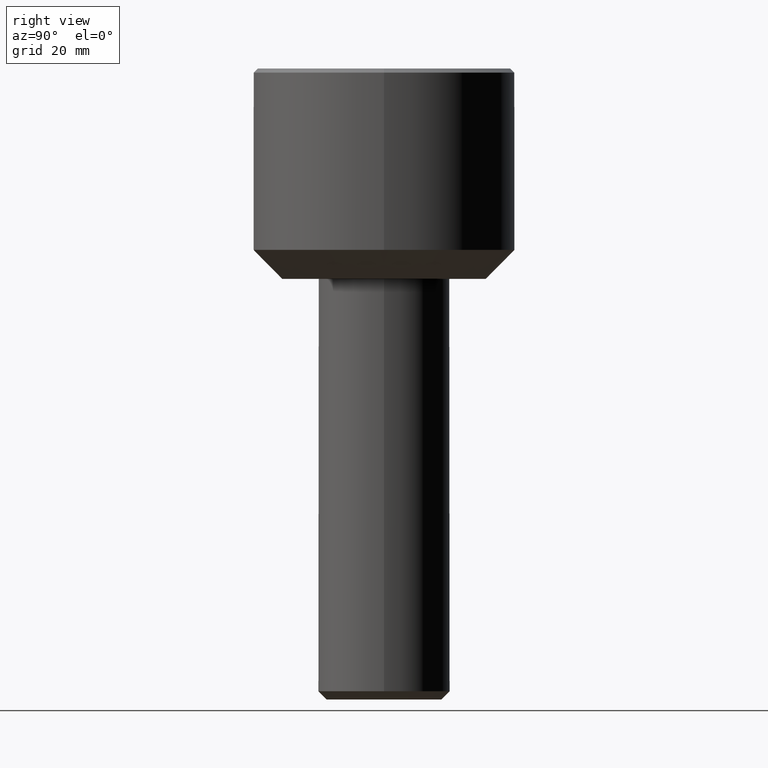
[diagram: clean part render]
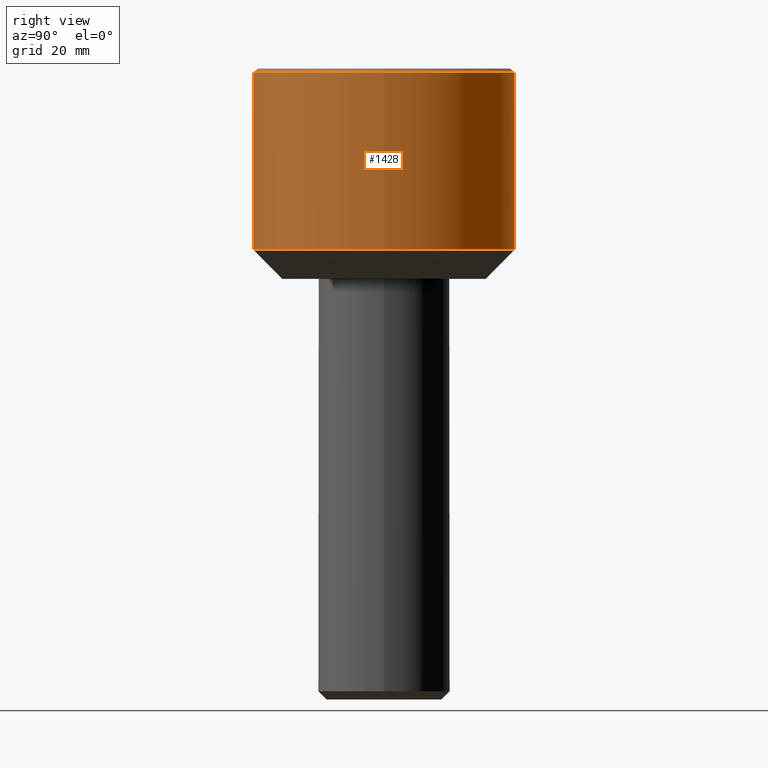
[diagram: same view with one face highlighted and labeled with its STEP entity id]
A machine part, right view. The second image highlights one B-rep face of the part: STEP entity #1428.
In plain terms, the highlighted cylindrical surface (bore or boss wall) has radius 31.635 mm, axis along (0, 0, 1).
Its self-contained STEP definition (entity closure, byte-faithful):
#4 = CARTESIAN_POINT ( 'NONE',  ( -31.29494617143287982, -4.627770575152126753, -11.99453285078505260 ) ) ;
#19 = VECTOR ( 'NONE', #127, 1000.000000000000000 ) ;
#74 = DIRECTION ( 'NONE',  ( -0.0000000000000000000, -0.0000000000000000000, -1.000000000000000000 ) ) ;
#86 = CARTESIAN_POINT ( 'NONE',  ( 0.0000000000000000000, 0.0000000000000000000, -50.79999999999999716 ) ) ;
#89 = CARTESIAN_POINT ( 'NONE',  ( 0.0000000000000000000, 0.0000000000000000000, -1.000000000000014655 ) ) ;
#93 = CARTESIAN_POINT ( 'NONE',  ( -31.57499155521561462, -1.982673587245592728, -21.88541886390813218 ) ) ;
#102 = CARTESIAN_POINT ( 'NONE',  ( -31.03936178477542285, 6.110462507248096031, -15.24455598308726145 ) ) ;
#111 = CARTESIAN_POINT ( 'NONE',  ( -31.18295517177928744, -5.333620611690355062, -19.13795296615103325 ) ) ;
#127 = DIRECTION ( 'NONE',  ( 0.0000000000000000000, 0.0000000000000000000, 1.000000000000000000 ) ) ;
#128 = CARTESIAN_POINT ( 'NONE',  ( -31.63499999999999801, -2.710505431213761085E-17, -9.900000000000002132 ) ) ;
#131 = CARTESIAN_POINT ( 'NONE',  ( -31.37345926647396865, -4.069474288278215113, -11.42163908736092814 ) ) ;
#143 = AXIS2_PLACEMENT_3D ( 'NONE', #86, #213, #1540 ) ;
#153 = AXIS2_PLACEMENT_3D ( 'NONE', #372, #1461, #1026 ) ;
#182 = CYLINDRICAL_SURFACE ( 'NONE', #143, 31.63500000000000512 ) ;
#185 = ORIENTED_EDGE ( 'NONE', *, *, #1700, .F. ) ;
#213 = DIRECTION ( 'NONE',  ( 0.0000000000000000000, 0.0000000000000000000, 1.000000000000000000 ) ) ;
#218 = CARTESIAN_POINT ( 'NONE',  ( -31.48617774082142162, 3.083283228783037622, -10.71360250916103318 ) ) ;
#225 = CARTESIAN_POINT ( 'NONE',  ( -31.60470170098007259, 1.398160463708151946, -10.05767778215976449 ) ) ;
#231 = CARTESIAN_POINT ( 'NONE',  ( -31.03150591184131457, -6.149704540309111067, -16.46060046698413970 ) ) ;
#233 = CARTESIAN_POINT ( 'NONE',  ( -31.25546420327848907, 4.890800144177320341, -19.80001582035771435 ) ) ;
#238 = CARTESIAN_POINT ( 'NONE',  ( -31.53312984910597905, 2.543556245516978898, -21.65297339836184065 ) ) ;
#242 = ORIENTED_EDGE ( 'NONE', *, *, #436, .F. ) ;
#246 = CARTESIAN_POINT ( 'NONE',  ( -31.09420476091030849, -5.824708136664795255, -18.03391168937421085 ) ) ;
#253 = CARTESIAN_POINT ( 'NONE',  ( -31.14955073844648936, -5.523005964174399374, -18.78534264180840552 ) ) ;
#257 = CARTESIAN_POINT ( 'NONE',  ( -31.59495882636598196, -1.602883798902350332, -10.10911986770909365 ) ) ;
#292 = CARTESIAN_POINT ( 'NONE',  ( -29.13500000000000512, -12.32578597899542494, -30.79999999999999716 ) ) ;
#331 = VERTEX_POINT ( 'NONE', #793 ) ;
#337 = CARTESIAN_POINT ( 'NONE',  ( -31.56088783546242382, 2.172188426028010433, -10.29285735724753259 ) ) ;
#350 = CARTESIAN_POINT ( 'NONE',  ( -31.37385217661605452, 4.066470608932987396, -11.41897445296088165 ) ) ;
#359 = CARTESIAN_POINT ( 'NONE',  ( -31.62531288138045582, 0.8084299760564176429, -22.15000615148151297 ) ) ;
#367 = CARTESIAN_POINT ( 'NONE',  ( -31.63503137585474434, -0.3993791786970989910, -22.20016139434829938 ) ) ;
#372 = CARTESIAN_POINT ( 'NONE',  ( 0.0000000000000000000, 0.0000000000000000000, -43.79999999999999005 ) ) ;
#374 = CARTESIAN_POINT ( 'NONE',  ( -31.41319968145773345, 3.754462846493052730, -20.93739841524076084 ) ) ;
#377 = CARTESIAN_POINT ( 'NONE',  ( -31.03149472680021503, 6.149760977421212083, -15.64422053971523141 ) ) ;
#382 = CARTESIAN_POINT ( 'NONE',  ( -31.03930406176959167, -6.110741338932145439, -15.24829750654376781 ) ) ;
#436 = EDGE_CURVE ( 'NONE', #859, #331, #960, .T. ) ;
#450 = CARTESIAN_POINT ( 'NONE',  ( -31.63500000000000512, 0.0000000000000000000, -9.900000000000002132 ) ) ;
#465 = ORIENTED_EDGE ( 'NONE', *, *, #1496, .F. ) ;
#471 = CARTESIAN_POINT ( 'NONE',  ( -31.62714141163481329, 0.8076758565718186178, -9.940067701724979443 ) ) ;
#481 = CARTESIAN_POINT ( 'NONE',  ( -31.09246550031209466, -5.835777288332026913, -14.06808548295174255 ) ) ;
#490 = CARTESIAN_POINT ( 'NONE',  ( -31.63305437799073516, 0.4047772109147499409, -22.19001543025934353 ) ) ;
#496 = CARTESIAN_POINT ( 'NONE',  ( -31.53356720063481333, -2.538076027116203726, -21.65542790947151630 ) ) ;
#502 = CARTESIAN_POINT ( 'NONE',  ( -31.59685051876095230, 1.602681203513629749, -22.00115700503473448 ) ) ;
#509 = CARTESIAN_POINT ( 'NONE',  ( -31.06254871442087406, -5.991068300330084639, -17.45350083635191751 ) ) ;
#514 = CARTESIAN_POINT ( 'NONE',  ( -29.13500000000000512, -12.32578597899539830, -43.79999999999999716 ) ) ;
#543 = CARTESIAN_POINT ( 'NONE',  ( -32.51467854958011827, 4.337091812975035765, -27.42032145041989821 ) ) ;
#601 = VERTEX_POINT ( 'NONE', #450 ) ;
#610 = ORIENTED_EDGE ( 'NONE', *, *, #786, .T. ) ;
#612 = CARTESIAN_POINT ( 'NONE',  ( -31.14867109723621397, -5.527928755267277339, -13.32487883047602217 ) ) ;
#616 = CARTESIAN_POINT ( 'NONE',  ( -31.25610394610896847, -4.883224598475700340, -12.30604596509955151 ) ) ;
#618 = DIRECTION ( 'NONE',  ( 0.0000000000000000000, 0.0000000000000000000, -1.000000000000000000 ) ) ;
#620 = CARTESIAN_POINT ( 'NONE',  ( -31.15027563534962951, 5.517504752590744133, -18.77400769837518268 ) ) ;
#623 = FACE_OUTER_BOUND ( 'NONE', #860, .T. ) ;
#628 = CARTESIAN_POINT ( 'NONE',  ( -31.29586820530218105, -4.628595306582016455, -20.11931210717043683 ) ) ;
#645 = CARTESIAN_POINT ( 'NONE',  ( -31.31460642270396377, -4.493215460353903623, -11.84601662027699298 ) ) ;
#659 = CARTESIAN_POINT ( 'NONE',  ( -31.63499999999999801, -0.4073368515243055432, -9.900000000000003908 ) ) ;
#701 = EDGE_CURVE ( 'NONE', #1562, #1562, #1199, .T. ) ;
#748 = CARTESIAN_POINT ( 'NONE',  ( -31.06965115799274457, -5.954522085857193225, -14.46017191860659246 ) ) ;
#755 = CARTESIAN_POINT ( 'NONE',  ( -31.29485843475698204, 4.635550321947788710, -20.11172800648304815 ) ) ;
#758 = VERTEX_POINT ( 'NONE', #1405 ) ;
#763 = CARTESIAN_POINT ( 'NONE',  ( -31.48569933183494030, -3.075032255355154120, -21.37984822377969252 ) ) ;
#771 = CARTESIAN_POINT ( 'NONE',  ( -31.07202134780150971, 5.941908991308467947, -14.45099962786069803 ) ) ;
#786 = EDGE_CURVE ( 'NONE', #859, #1439, #1280, .T. ) ;
#793 = CARTESIAN_POINT ( 'NONE',  ( -29.13500000000000512, -12.32578597899542494, -30.79999999999999716 ) ) ;
#799 = ORIENTED_EDGE ( 'NONE', *, *, #701, .T. ) ;
#807 = CARTESIAN_POINT ( 'NONE',  ( -29.13500000000000512, 12.32578597899542494, -30.79999999999999716 ) ) ;
#822 = CARTESIAN_POINT ( 'NONE',  ( -32.51467854958011827, -4.337091812975044647, -27.42032145041989821 ) ) ;
#859 = VERTEX_POINT ( 'NONE', #514 ) ;
#860 = EDGE_LOOP ( 'NONE', ( #1615, #185, #242, #610 ) ) ;
#872 = CARTESIAN_POINT ( 'NONE',  ( -31.57356023390620692, 1.980165124328016057, -10.22399705901214162 ) ) ;
#884 = CARTESIAN_POINT ( 'NONE',  ( -31.14893188938082957, 5.526447205926069195, -13.32214742553913212 ) ) ;
#891 = CARTESIAN_POINT ( 'NONE',  ( -31.62740775797190196, -0.7994771007636308768, -22.16131925570402927 ) ) ;
#896 = CARTESIAN_POINT ( 'NONE',  ( -31.06998958270841271, 5.952763469307031485, -17.64659564613035769 ) ) ;
#902 = CARTESIAN_POINT ( 'NONE',  ( -31.25590746811010590, -4.887990427525758186, -19.80373306603250683 ) ) ;
#909 = CARTESIAN_POINT ( 'NONE',  ( -31.46808969218003327, -3.249758471537230964, -21.27514476454339842 ) ) ;
#915 = CARTESIAN_POINT ( 'NONE',  ( -31.62713767710761914, -0.8094393531093404537, -9.940074530965247845 ) ) ;
#928 = CARTESIAN_POINT ( 'NONE',  ( -31.57298941737393605, -1.989220692366918453, -10.22708885040380089 ) ) ;
#960 = LINE ( 'NONE', #1080, #19 ) ;
#969 = B_SPLINE_CURVE_WITH_KNOTS ( 'NONE', 3,
 ( #1394, #1126, #471, #225, #1534, #872, #337, #1554, #218, #1143, #350, #1279, #1418, #1016, #884, #1170, #1158, #771, #1422, #102, #377, #1304, #1576, #896, #1019, #1723, #620, #1165, #1314, #233, #755, #1579, #374, #1448, #1593, #1706, #238, #1030, #502, #1435, #359, #490, #1567, #367, #891, #1727, #93, #496, #1443, #763, #909, #1298, #1424, #628, #902, #111, #253, #1036, #246, #1175, #509, #1040, #231, #1183, #382, #748, #481, #612, #1702, #1294, #616, #4, #645, #131, #1339, #1474, #1331, #1616, #928, #257, #1469, #915, #659, #128 ),
 .UNSPECIFIED., .T., .F.,
 ( 4, 2, 2, 2, 2, 2, 2, 2, 2, 2, 2, 2, 2, 2, 2, 2, 2, 2, 2, 2, 2, 2, 2, 2, 2, 2, 2, 2, 2, 2, 2, 2, 2, 2, 2, 2, 2, 2, 2, 2, 2, 4 ),
 ( 0.0000000000000000000, 0.001204448729441696389, 0.001806673094162544908, 0.002408897458883392777, 0.003613346188325086781, 0.004817794917766780351, 0.006022243647208473487, 0.007226692376650167490, 0.007828916741371014926, 0.008431141106091862361, 0.009635589835533550293, 0.01084003856497522955, 0.01204448729441690881, 0.01264671165913774931, 0.01324893602385858807, 0.01445338475330026733, 0.01565783348274194658, 0.01626005784746278882, 0.01686228221218362758, 0.01806673094162531204, 0.01866895530634615080, 0.01927117967106699303, 0.02047562840050867750, 0.02168007712995036196, 0.02228230149467120072, 0.02288452585939203948, 0.02408897458883372741, 0.02529342331827541535, 0.02649787204771710328, 0.02710009641243794898, 0.02770232077715879121, 0.02890676950660048955, 0.03011121823604218442, 0.03131566696548387929, 0.03252011569492557763, 0.03312234005964641986, 0.03372456442436726903, 0.03492901315380895350, 0.03613346188325064490, 0.03673568624797148713, 0.03733791061269232936, 0.03854235934213401382 ),
 .UNSPECIFIED. ) ;
#1016 = CARTESIAN_POINT ( 'NONE',  ( -31.18255929126463855, 5.336019937464928198, -12.96572065576078536 ) ) ;
#1019 = CARTESIAN_POINT ( 'NONE',  ( -31.09235520337734116, 5.836378947577909315, -18.03042278156139133 ) ) ;
#1026 = DIRECTION ( 'NONE',  ( 1.000000000000000000, 0.0000000000000000000, 0.0000000000000000000 ) ) ;
#1030 = CARTESIAN_POINT ( 'NONE',  ( -31.57479811541287518, 1.986019836170112685, -21.88439648273701721 ) ) ;
#1036 = CARTESIAN_POINT ( 'NONE',  ( -31.10708219353456272, -5.755769512109106145, -18.22587129343066081 ) ) ;
#1040 = CARTESIAN_POINT ( 'NONE',  ( -31.03962362712265488, -6.109125808700433424, -16.86359557576994561 ) ) ;
#1057 =( BOUNDED_CURVE ( )  B_SPLINE_CURVE ( 3, ( #292, #822, #543, #807 ),
 .UNSPECIFIED., .F., .F. ) 
 B_SPLINE_CURVE_WITH_KNOTS ( ( 4, 4 ),
 ( 5.882960958117554817, 6.683409656241617647 ),
 .UNSPECIFIED. ) 
 CURVE ( )  GEOMETRIC_REPRESENTATION_ITEM ( )  RATIONAL_B_SPLINE_CURVE ( ( 1.000000000000000000, 0.9473157367894208258, 0.9473157367894208258, 1.000000000000000000 ) ) 
 REPRESENTATION_ITEM ( '' )  );
#1071 = VECTOR ( 'NONE', #74, 1000.000000000000000 ) ;
#1080 = CARTESIAN_POINT ( 'NONE',  ( -29.13500000000000512, -12.32578597899540718, -50.79999999999999716 ) ) ;
#1126 = CARTESIAN_POINT ( 'NONE',  ( -31.63500000000000512, 0.4073368515243098176, -9.899999999999998579 ) ) ;
#1143 = CARTESIAN_POINT ( 'NONE',  ( -31.41362025068354669, 3.751064774345628461, -11.15987866124054584 ) ) ;
#1149 = CARTESIAN_POINT ( 'NONE',  ( -29.13500000000001933, 12.32578597899539652, -43.79999999999999005 ) ) ;
#1158 = CARTESIAN_POINT ( 'NONE',  ( -31.09423886476884391, 5.824525948085653049, -14.06556503478421938 ) ) ;
#1165 = CARTESIAN_POINT ( 'NONE',  ( -31.18334585336180709, 5.327426418331960178, -19.12922139394480325 ) ) ;
#1170 = CARTESIAN_POINT ( 'NONE',  ( -31.10690451436970605, 5.756718199302368610, -13.87680645804587876 ) ) ;
#1175 = CARTESIAN_POINT ( 'NONE',  ( -31.07198186655947936, -5.942115572331510442, -17.64824685002664140 ) ) ;
#1183 = CARTESIAN_POINT ( 'NONE',  ( -31.03138943790033721, -6.150292240463696380, -15.64829857670389401 ) ) ;
#1199 = CIRCLE ( 'NONE', #1626, 31.63500000000000512 ) ;
#1239 = FACE_BOUND ( 'NONE', #1658, .T. ) ;
#1274 = CARTESIAN_POINT ( 'NONE',  ( -29.13500000000000512, 12.32578597899540718, -50.79999999999999716 ) ) ;
#1279 = CARTESIAN_POINT ( 'NONE',  ( -31.29532485846538847, 4.632216058927968838, -11.98488558413730409 ) ) ;
#1280 = CIRCLE ( 'NONE', #153, 31.63500000000000512 ) ;
#1294 = CARTESIAN_POINT ( 'NONE',  ( -31.23687753762065356, -5.004349296477375475, -12.46957017350253949 ) ) ;
#1298 = CARTESIAN_POINT ( 'NONE',  ( -31.41350304029582574, -3.752139087371761494, -20.93939914550551507 ) ) ;
#1304 = CARTESIAN_POINT ( 'NONE',  ( -31.03140041166166085, 6.150236869419505759, -16.44850156817091857 ) ) ;
#1314 = CARTESIAN_POINT ( 'NONE',  ( -31.20085088714616717, 5.224252561012677987, -19.30110694295911600 ) ) ;
#1331 = CARTESIAN_POINT ( 'NONE',  ( -31.51891494940375793, -2.732900751209907053, -10.52603445126488779 ) ) ;
#1339 = CARTESIAN_POINT ( 'NONE',  ( -31.41253799454951690, -3.760392683083108700, -11.16671765412948147 ) ) ;
#1394 = CARTESIAN_POINT ( 'NONE',  ( -31.63499999999999801, -2.710505431213761085E-17, -9.900000000000002132 ) ) ;
#1405 = CARTESIAN_POINT ( 'NONE',  ( -29.13500000000000512, 12.32578597899542494, -30.79999999999999716 ) ) ;
#1418 = CARTESIAN_POINT ( 'NONE',  ( -31.25616633723338111, 4.886428002688493422, -12.29384382368548501 ) ) ;
#1420 = DIRECTION ( 'NONE',  ( 1.000000000000000000, 0.0000000000000000000, 0.0000000000000000000 ) ) ;
#1422 = CARTESIAN_POINT ( 'NONE',  ( -31.06243058285826564, 5.991682405616717944, -14.64884334229204121 ) ) ;
#1424 = CARTESIAN_POINT ( 'NONE',  ( -31.37454448161633991, -4.061184532477454923, -20.68572817697962662 ) ) ;
#1428 = ADVANCED_FACE ( 'NONE', ( #623, #1608, #1239 ), #182, .T. ) ;
#1435 = CARTESIAN_POINT ( 'NONE',  ( -31.61948949789924868, 1.010044592329939706, -22.11983517948986133 ) ) ;
#1439 = VERTEX_POINT ( 'NONE', #1149 ) ;
#1443 = CARTESIAN_POINT ( 'NONE',  ( -31.51839436990658427, -2.719540793815489188, -21.56971043903352481 ) ) ;
#1448 = CARTESIAN_POINT ( 'NONE',  ( -31.46747132831541904, 3.255678627391746627, -21.27140740690602883 ) ) ;
#1461 = DIRECTION ( 'NONE',  ( -0.0000000000000000000, -0.0000000000000000000, 1.000000000000000000 ) ) ;
#1469 = CARTESIAN_POINT ( 'NONE',  ( -31.60441426287748001, -1.404875538507857291, -10.05919078527928434 ) ) ;
#1471 = EDGE_CURVE ( 'NONE', #758, #1439, #1708, .T. ) ;
#1474 = CARTESIAN_POINT ( 'NONE',  ( -31.48589352848565071, -3.086519901582776892, -10.71517155874633076 ) ) ;
#1496 = EDGE_CURVE ( 'NONE', #601, #601, #969, .T. ) ;
#1534 = CARTESIAN_POINT ( 'NONE',  ( -31.59544486650891315, 1.593305824725458342, -10.10653798389355806 ) ) ;
#1540 = DIRECTION ( 'NONE',  ( 1.000000000000000000, 0.0000000000000000000, 0.0000000000000000000 ) ) ;
#1554 = CARTESIAN_POINT ( 'NONE',  ( -31.51915754126331137, 2.730422489701582744, -10.52463404864370844 ) ) ;
#1562 = VERTEX_POINT ( 'NONE', #1663 ) ;
#1567 = CARTESIAN_POINT ( 'NONE',  ( -31.63498416654037015, 0.2034060044933597711, -22.19991855422195570 ) ) ;
#1576 = CARTESIAN_POINT ( 'NONE',  ( -31.03943548962668686, 6.110081020447130307, -16.85710625219390835 ) ) ;
#1579 = CARTESIAN_POINT ( 'NONE',  ( -31.37421066589088525, 4.063913917775377804, -20.68363408728727038 ) ) ;
#1593 = CARTESIAN_POINT ( 'NONE',  ( -31.48486261885821591, 3.083606764367126996, -21.37491228922310071 ) ) ;
#1608 = FACE_OUTER_BOUND ( 'NONE', #1698, .T. ) ;
#1615 = ORIENTED_EDGE ( 'NONE', *, *, #1471, .F. ) ;
#1616 = CARTESIAN_POINT ( 'NONE',  ( -31.56046675581830740, -2.178197289231283751, -10.29517011162975493 ) ) ;
#1626 = AXIS2_PLACEMENT_3D ( 'NONE', #89, #618, #1420 ) ;
#1658 = EDGE_LOOP ( 'NONE', ( #465 ) ) ;
#1663 = CARTESIAN_POINT ( 'NONE',  ( 31.63500000000000512, 0.0000000000000000000, -1.000000000000014655 ) ) ;
#1698 = EDGE_LOOP ( 'NONE', ( #799 ) ) ;
#1700 = EDGE_CURVE ( 'NONE', #331, #758, #1057, .T. ) ;
#1702 = CARTESIAN_POINT ( 'NONE',  ( -31.18197676026348830, -5.339360546754648773, -12.97173954216591873 ) ) ;
#1706 = CARTESIAN_POINT ( 'NONE',  ( -31.51771190794695698, 2.727460520939556154, -21.56582094269620598 ) ) ;
#1708 = LINE ( 'NONE', #1274, #1071 ) ;
#1723 = CARTESIAN_POINT ( 'NONE',  ( -31.13465088993152108, 5.604721272308314184, -18.58974858265520069 ) ) ;
#1727 = CARTESIAN_POINT ( 'NONE',  ( -31.59722625707990673, -1.596050745611295119, -22.00315115692670531 ) ) ;